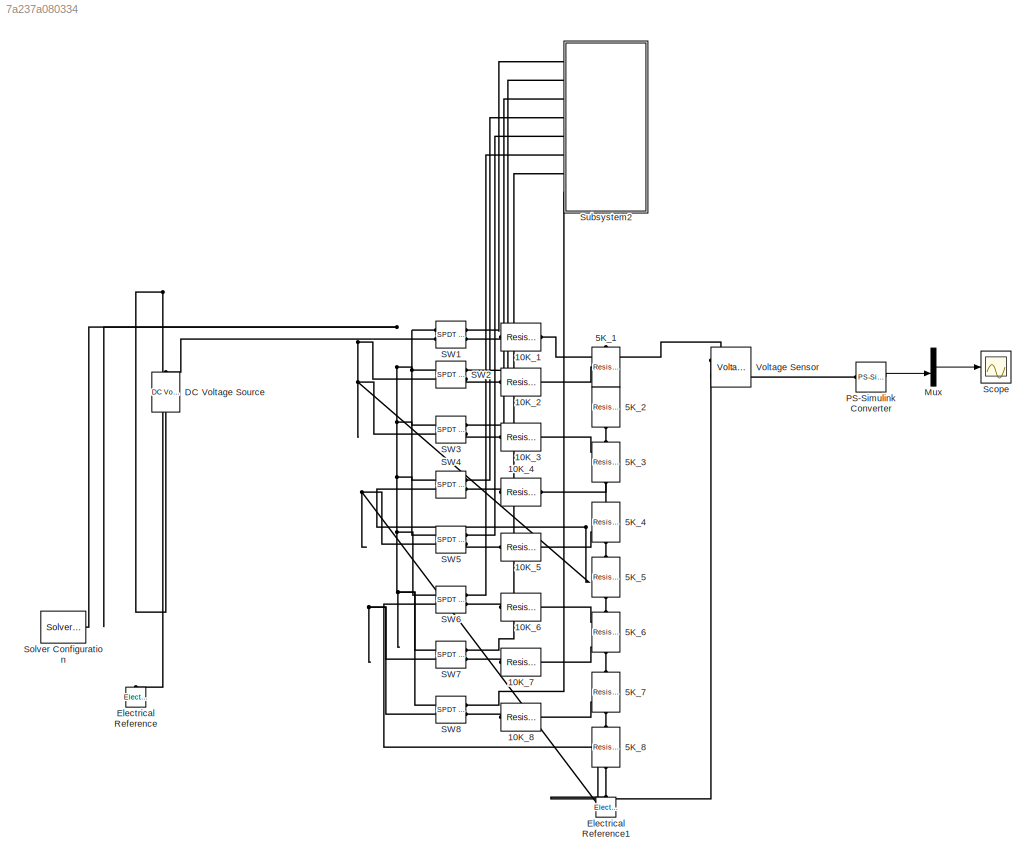
MODEL slx_7a237a080334
KIND model
CONFIG AbsTol = auto
CONFIG FixedStep = auto
CONFIG MaxStep = auto
CONFIG MinStep = auto
CONFIG RelTol = 1e-3
CONFIG SampleTimeConstraint = Unconstrained
CONFIG Solver = VariableStepAuto
CONFIG SolverMode = Auto
CONFIG SolverName = VariableStepAuto
CONFIG StartTime = 0.0
CONFIG StopTime = 512
BLOCK [Reference] 10K_1  REF=fl_lib/Electrical/Electrical Elements/Resistor
  Ports = [0, 0, 0, 0, 0, 1, 1]
  SourceBlock = fl_lib/Electrical/Electrical Elements/Resistor
  SourceType = Resistor
BLOCK [Reference] 10K_2  REF=fl_lib/Electrical/Electrical Elements/Resistor
  Ports = [0, 0, 0, 0, 0, 1, 1]
  SourceBlock = fl_lib/Electrical/Electrical Elements/Resistor
  SourceType = Resistor
BLOCK [Reference] 10K_3  REF=fl_lib/Electrical/Electrical Elements/Resistor
  Ports = [0, 0, 0, 0, 0, 1, 1]
  SourceBlock = fl_lib/Electrical/Electrical Elements/Resistor
  SourceType = Resistor
BLOCK [Reference] 10K_4  REF=fl_lib/Electrical/Electrical Elements/Resistor
  Ports = [0, 0, 0, 0, 0, 1, 1]
  SourceBlock = fl_lib/Electrical/Electrical Elements/Resistor
  SourceType = Resistor
BLOCK [Reference] 10K_5  REF=fl_lib/Electrical/Electrical Elements/Resistor
  Ports = [0, 0, 0, 0, 0, 1, 1]
  SourceBlock = fl_lib/Electrical/Electrical Elements/Resistor
  SourceType = Resistor
BLOCK [Reference] 10K_6  REF=fl_lib/Electrical/Electrical Elements/Resistor
  Ports = [0, 0, 0, 0, 0, 1, 1]
  SourceBlock = fl_lib/Electrical/Electrical Elements/Resistor
  SourceType = Resistor
BLOCK [Reference] 10K_7  REF=fl_lib/Electrical/Electrical Elements/Resistor
  Ports = [0, 0, 0, 0, 0, 1, 1]
  SourceBlock = fl_lib/Electrical/Electrical Elements/Resistor
  SourceType = Resistor
BLOCK [Reference] 10K_8  REF=fl_lib/Electrical/Electrical Elements/Resistor
  Ports = [0, 0, 0, 0, 0, 1, 1]
  SourceBlock = fl_lib/Electrical/Electrical Elements/Resistor
  SourceType = Resistor
BLOCK [Reference] 5K_1  REF=fl_lib/Electrical/Electrical Elements/Resistor
  Ports = [0, 0, 0, 0, 0, 1, 1]
  SourceBlock = fl_lib/Electrical/Electrical Elements/Resistor
  SourceType = Resistor
BLOCK [Reference] 5K_2  REF=fl_lib/Electrical/Electrical Elements/Resistor
  Ports = [0, 0, 0, 0, 0, 1, 1]
  SourceBlock = fl_lib/Electrical/Electrical Elements/Resistor
  SourceType = Resistor
BLOCK [Reference] 5K_3  REF=fl_lib/Electrical/Electrical Elements/Resistor
  Ports = [0, 0, 0, 0, 0, 1, 1]
  SourceBlock = fl_lib/Electrical/Electrical Elements/Resistor
  SourceType = Resistor
BLOCK [Reference] 5K_4  REF=fl_lib/Electrical/Electrical Elements/Resistor
  Ports = [0, 0, 0, 0, 0, 1, 1]
  SourceBlock = fl_lib/Electrical/Electrical Elements/Resistor
  SourceType = Resistor
BLOCK [Reference] 5K_5  REF=fl_lib/Electrical/Electrical Elements/Resistor
  Ports = [0, 0, 0, 0, 0, 1, 1]
  SourceBlock = fl_lib/Electrical/Electrical Elements/Resistor
  SourceType = Resistor
BLOCK [Reference] 5K_6  REF=fl_lib/Electrical/Electrical Elements/Resistor
  Ports = [0, 0, 0, 0, 0, 1, 1]
  SourceBlock = fl_lib/Electrical/Electrical Elements/Resistor
  SourceType = Resistor
BLOCK [Reference] 5K_7  REF=fl_lib/Electrical/Electrical Elements/Resistor
  Ports = [0, 0, 0, 0, 0, 1, 1]
  SourceBlock = fl_lib/Electrical/Electrical Elements/Resistor
  SourceType = Resistor
BLOCK [Reference] 5K_8  REF=fl_lib/Electrical/Electrical Elements/Resistor
  Ports = [0, 0, 0, 0, 0, 1, 1]
  SourceBlock = fl_lib/Electrical/Electrical Elements/Resistor
  SourceType = Resistor
BLOCK [Reference] DC Voltage Source  REF=fl_lib/Electrical/Electrical Sources/DC Voltage Source
  Ports = [0, 0, 0, 0, 0, 1, 1]
  SourceBlock = fl_lib/Electrical/Electrical Sources/DC Voltage Source
  SourceType = DC Voltage Source
BLOCK [Reference] Electrical Reference  REF=fl_lib/Electrical/Electrical Elements/Electrical Reference
  Ports = [0, 0, 0, 0, 0, 1]
  SourceBlock = fl_lib/Electrical/Electrical Elements/Electrical Reference
  SourceType = Electrical Reference
BLOCK [Reference] Electrical Reference1  REF=fl_lib/Electrical/Electrical Elements/Electrical Reference
  Ports = [0, 0, 0, 0, 0, 1]
  SourceBlock = fl_lib/Electrical/Electrical Elements/Electrical Reference
  SourceType = Electrical Reference
BLOCK [Mux] Mux
  DisplayOption = bar
  Inputs = 2
  Ports = [2, 1]
BLOCK [Reference] PS-Simulink Converter  REF=nesl_utility/PS-Simulink
Converter
  Ports = [0, 1, 0, 0, 0, 1]
  SourceBlock = nesl_utility/PS-Simulink\nConverter
  SourceType = PS-Simulink\nConverter
BLOCK [Reference] SW1  REF=elec_lib/Passive Devices/Switches/SPDT Switch
  Ports = [0, 0, 0, 0, 0, 2, 2]
  SourceBlock = elec_lib/Passive Devices/Switches/SPDT Switch
  SourceType = SPDT Switch
BLOCK [Reference] SW2  REF=elec_lib/Passive Devices/Switches/SPDT Switch
  Ports = [0, 0, 0, 0, 0, 2, 2]
  SourceBlock = elec_lib/Passive Devices/Switches/SPDT Switch
  SourceType = SPDT Switch
BLOCK [Reference] SW3  REF=elec_lib/Passive Devices/Switches/SPDT Switch
  Ports = [0, 0, 0, 0, 0, 2, 2]
  SourceBlock = elec_lib/Passive Devices/Switches/SPDT Switch
  SourceType = SPDT Switch
BLOCK [Reference] SW4  REF=elec_lib/Passive Devices/Switches/SPDT Switch
  Ports = [0, 0, 0, 0, 0, 2, 2]
  SourceBlock = elec_lib/Passive Devices/Switches/SPDT Switch
  SourceType = SPDT Switch
BLOCK [Reference] SW5  REF=elec_lib/Passive Devices/Switches/SPDT Switch
  Ports = [0, 0, 0, 0, 0, 2, 2]
  SourceBlock = elec_lib/Passive Devices/Switches/SPDT Switch
  SourceType = SPDT Switch
BLOCK [Reference] SW6  REF=elec_lib/Passive Devices/Switches/SPDT Switch
  Ports = [0, 0, 0, 0, 0, 2, 2]
  SourceBlock = elec_lib/Passive Devices/Switches/SPDT Switch
  SourceType = SPDT Switch
BLOCK [Reference] SW7  REF=elec_lib/Passive Devices/Switches/SPDT Switch
  Ports = [0, 0, 0, 0, 0, 2, 2]
  SourceBlock = elec_lib/Passive Devices/Switches/SPDT Switch
  SourceType = SPDT Switch
BLOCK [Reference] SW8  REF=elec_lib/Passive Devices/Switches/SPDT Switch
  Ports = [0, 0, 0, 0, 0, 2, 2]
  SourceBlock = elec_lib/Passive Devices/Switches/SPDT Switch
  SourceType = SPDT Switch
BLOCK [Scope] Scope
  Ports = [1]
  ScopeSpecificationString = Simulink.scopes.TimeScopeBlockCfg('CurrentConfiguration', extmgr.ConfigurationSet(extmgr.Configuration('Core','General UI',true),extmgr.Configuration('Core','Source UI',true),extmgr.Configuration('Sources','WiredSimulink',true),extmgr.Configuration('Visuals','Time Domain',true,'SerializedDisplays',{struct('MinYLimReal','-0.62134','MaxYLimReal','5.59204','YLabelReal','','MinYLimMag','0.00000','MaxY...<+1452ch>
BLOCK [Reference] Solver Configuration  REF=nesl_utility/Solver
Configuration
  Ports = [0, 0, 0, 0, 0, 0, 1]
  SourceBlock = nesl_utility/Solver\nConfiguration
  SourceType = Solver\nConfiguration
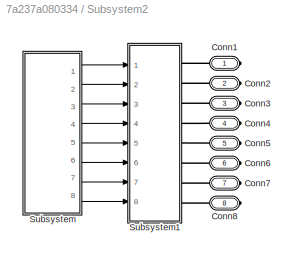
BLOCK [SubSystem] Subsystem2
  Ports = [0, 0, 0, 0, 0, 0, 8]
  RequestExecContextInheritance = off
  Variant = off
BLOCK [PMIOPort] Subsystem2/Conn1
  Port = 1
  Side = Right
BLOCK [PMIOPort] Subsystem2/Conn2
  Port = 2
  Side = Right
BLOCK [PMIOPort] Subsystem2/Conn3
  Port = 3
  Side = Right
BLOCK [PMIOPort] Subsystem2/Conn4
  Port = 4
  Side = Right
BLOCK [PMIOPort] Subsystem2/Conn5
  Port = 5
  Side = Right
BLOCK [PMIOPort] Subsystem2/Conn6
  Port = 6
  Side = Right
BLOCK [PMIOPort] Subsystem2/Conn7
  Port = 7
  Side = Right
BLOCK [PMIOPort] Subsystem2/Conn8
  Port = 8
  Side = Right
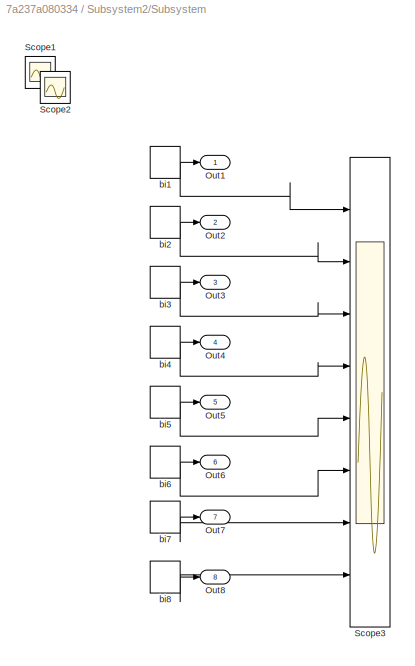
BLOCK [SubSystem] Subsystem2/Subsystem
  Ports = [0, 8]
  RequestExecContextInheritance = off
  Variant = off
BLOCK [Outport] Subsystem2/Subsystem/Out1
  IconDisplay = Port number
BLOCK [Outport] Subsystem2/Subsystem/Out2
  IconDisplay = Port number
  Port = 2
BLOCK [Outport] Subsystem2/Subsystem/Out3
  IconDisplay = Port number
  Port = 3
BLOCK [Outport] Subsystem2/Subsystem/Out4
  IconDisplay = Port number
  Port = 4
BLOCK [Outport] Subsystem2/Subsystem/Out5
  IconDisplay = Port number
  Port = 5
BLOCK [Outport] Subsystem2/Subsystem/Out6
  IconDisplay = Port number
  Port = 6
BLOCK [Outport] Subsystem2/Subsystem/Out7
  IconDisplay = Port number
  Port = 7
BLOCK [Outport] Subsystem2/Subsystem/Out8
  IconDisplay = Port number
  Port = 8
BLOCK [Scope] Subsystem2/Subsystem/Scope1
  Ports = [1]
  ScopeSpecificationString = Simulink.scopes.TimeScopeBlockCfg('CurrentConfiguration', extmgr.ConfigurationSet(extmgr.Configuration('Core','General UI',true),extmgr.Configuration('Core','Source UI',true),extmgr.Configuration('Sources','WiredSimulink',true,'DataLoggingVariableName','ScopeData2'),extmgr.Configuration('Visuals','Time Domain',true,'SerializedDisplays',{struct('MinYLimReal','-0.05089','MaxYLimReal','1.01546','YLab...<+1541ch>
BLOCK [Scope] Subsystem2/Subsystem/Scope2
  Ports = [1]
  ScopeSpecificationString = Simulink.scopes.TimeScopeBlockCfg('CurrentConfiguration', extmgr.ConfigurationSet(extmgr.Configuration('Core','General UI',true),extmgr.Configuration('Core','Source UI',true),extmgr.Configuration('Sources','WiredSimulink',true,'DataLoggingVariableName','ScopeData3'),extmgr.Configuration('Visuals','Time Domain',true,'SerializedDisplays',{struct('MinYLimReal','-0.05089','MaxYLimReal','1.01546','YLab...<+1541ch>
BLOCK [Scope] Subsystem2/Subsystem/Scope3
  NumInputPorts = 8
  Ports = [8]
  ScopeSpecificationString = Simulink.scopes.TimeScopeBlockCfg('CurrentConfiguration', extmgr.ConfigurationSet(extmgr.Configuration('Core','General UI',true),extmgr.Configuration('Core','Source UI',true),extmgr.Configuration('Sources','WiredSimulink',true,'DataLoggingVariableName','ScopeData1'),extmgr.Configuration('Visuals','Time Domain',true,'SerializedDisplays',{struct('MinYLimReal','-0.125','MaxYLimReal','1.125','YLabelRe...<+6253ch>
BLOCK [DiscretePulseGenerator] Subsystem2/Subsystem/bi1
  Period = 256
  Ports = [0, 1]
  PulseType = Time based
  PulseWidth = 50
BLOCK [DiscretePulseGenerator] Subsystem2/Subsystem/bi2
  Period = 128
  Ports = [0, 1]
  PulseType = Time based
  PulseWidth = 50
BLOCK [DiscretePulseGenerator] Subsystem2/Subsystem/bi3
  Period = 64
  Ports = [0, 1]
  PulseType = Time based
  PulseWidth = 50
BLOCK [DiscretePulseGenerator] Subsystem2/Subsystem/bi4
  Period = 32
  Ports = [0, 1]
  PulseType = Time based
  PulseWidth = 50
BLOCK [DiscretePulseGenerator] Subsystem2/Subsystem/bi5
  Period = 16
  Ports = [0, 1]
  PulseType = Time based
  PulseWidth = 50
BLOCK [DiscretePulseGenerator] Subsystem2/Subsystem/bi6
  Period = 8
  Ports = [0, 1]
  PulseType = Time based
  PulseWidth = 50
BLOCK [DiscretePulseGenerator] Subsystem2/Subsystem/bi7
  Period = 4
  Ports = [0, 1]
  PulseType = Time based
  PulseWidth = 50
BLOCK [DiscretePulseGenerator] Subsystem2/Subsystem/bi8
  Ports = [0, 1]
  PulseType = Time based
  PulseWidth = 50
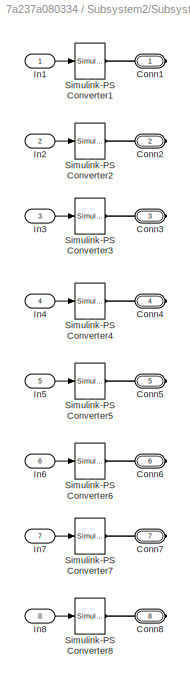
BLOCK [SubSystem] Subsystem2/Subsystem1
  Ports = [8, 0, 0, 0, 0, 0, 8]
  RequestExecContextInheritance = off
  Variant = off
BLOCK [PMIOPort] Subsystem2/Subsystem1/Conn1
  Port = 1
  Side = Right
BLOCK [PMIOPort] Subsystem2/Subsystem1/Conn2
  Port = 2
  Side = Right
BLOCK [PMIOPort] Subsystem2/Subsystem1/Conn3
  Port = 3
  Side = Right
BLOCK [PMIOPort] Subsystem2/Subsystem1/Conn4
  Port = 4
  Side = Right
BLOCK [PMIOPort] Subsystem2/Subsystem1/Conn5
  Port = 5
  Side = Right
BLOCK [PMIOPort] Subsystem2/Subsystem1/Conn6
  Port = 6
  Side = Right
BLOCK [PMIOPort] Subsystem2/Subsystem1/Conn7
  Port = 7
  Side = Right
BLOCK [PMIOPort] Subsystem2/Subsystem1/Conn8
  Port = 8
  Side = Right
BLOCK [Inport] Subsystem2/Subsystem1/In1
  IconDisplay = Port number
BLOCK [Inport] Subsystem2/Subsystem1/In2
  IconDisplay = Port number
  Port = 2
BLOCK [Inport] Subsystem2/Subsystem1/In3
  IconDisplay = Port number
  Port = 3
BLOCK [Inport] Subsystem2/Subsystem1/In4
  IconDisplay = Port number
  Port = 4
BLOCK [Inport] Subsystem2/Subsystem1/In5
  IconDisplay = Port number
  Port = 5
BLOCK [Inport] Subsystem2/Subsystem1/In6
  IconDisplay = Port number
  Port = 6
BLOCK [Inport] Subsystem2/Subsystem1/In7
  IconDisplay = Port number
  Port = 7
BLOCK [Inport] Subsystem2/Subsystem1/In8
  IconDisplay = Port number
  Port = 8
BLOCK [Reference] Subsystem2/Subsystem1/Simulink-PS Converter1  REF=nesl_utility/Simulink-PS
Converter
  Ports = [1, 0, 0, 0, 0, 0, 1]
  SourceBlock = nesl_utility/Simulink-PS\nConverter
  SourceType = Simulink-PS\nConverter
BLOCK [Reference] Subsystem2/Subsystem1/Simulink-PS Converter2  REF=nesl_utility/Simulink-PS
Converter
  Ports = [1, 0, 0, 0, 0, 0, 1]
  SourceBlock = nesl_utility/Simulink-PS\nConverter
  SourceType = Simulink-PS\nConverter
BLOCK [Reference] Subsystem2/Subsystem1/Simulink-PS Converter3  REF=nesl_utility/Simulink-PS
Converter
  Ports = [1, 0, 0, 0, 0, 0, 1]
  SourceBlock = nesl_utility/Simulink-PS\nConverter
  SourceType = Simulink-PS\nConverter
BLOCK [Reference] Subsystem2/Subsystem1/Simulink-PS Converter4  REF=nesl_utility/Simulink-PS
Converter
  Ports = [1, 0, 0, 0, 0, 0, 1]
  SourceBlock = nesl_utility/Simulink-PS\nConverter
  SourceType = Simulink-PS\nConverter
BLOCK [Reference] Subsystem2/Subsystem1/Simulink-PS Converter5  REF=nesl_utility/Simulink-PS
Converter
  Ports = [1, 0, 0, 0, 0, 0, 1]
  SourceBlock = nesl_utility/Simulink-PS\nConverter
  SourceType = Simulink-PS\nConverter
BLOCK [Reference] Subsystem2/Subsystem1/Simulink-PS Converter6  REF=nesl_utility/Simulink-PS
Converter
  Ports = [1, 0, 0, 0, 0, 0, 1]
  SourceBlock = nesl_utility/Simulink-PS\nConverter
  SourceType = Simulink-PS\nConverter
BLOCK [Reference] Subsystem2/Subsystem1/Simulink-PS Converter7  REF=nesl_utility/Simulink-PS
Converter
  Ports = [1, 0, 0, 0, 0, 0, 1]
  SourceBlock = nesl_utility/Simulink-PS\nConverter
  SourceType = Simulink-PS\nConverter
BLOCK [Reference] Subsystem2/Subsystem1/Simulink-PS Converter8  REF=nesl_utility/Simulink-PS
Converter
  Ports = [1, 0, 0, 0, 0, 0, 1]
  SourceBlock = nesl_utility/Simulink-PS\nConverter
  SourceType = Simulink-PS\nConverter
BLOCK [Reference] Voltage Sensor  REF=fl_lib/Electrical/Electrical Sensors/Voltage Sensor
  Ports = [0, 0, 0, 0, 0, 1, 2]
  SourceBlock = fl_lib/Electrical/Electrical Sensors/Voltage Sensor
  SourceType = Voltage Sensor
LINE Mux:1 -> Scope:1
LINE PS-Simulink Converter:1 -> Mux:2
NET Subsystem2/Subsystem/bi1:1 -> Subsystem2/Subsystem/Out1:1, Subsystem2/Subsystem/Scope3:1
NET Subsystem2/Subsystem/bi2:1 -> Subsystem2/Subsystem/Out2:1, Subsystem2/Subsystem/Scope3:2
NET Subsystem2/Subsystem/bi3:1 -> Subsystem2/Subsystem/Out3:1, Subsystem2/Subsystem/Scope3:3
NET Subsystem2/Subsystem/bi4:1 -> Subsystem2/Subsystem/Out4:1, Subsystem2/Subsystem/Scope3:4
NET Subsystem2/Subsystem/bi5:1 -> Subsystem2/Subsystem/Out5:1, Subsystem2/Subsystem/Scope3:5
NET Subsystem2/Subsystem/bi6:1 -> Subsystem2/Subsystem/Out6:1, Subsystem2/Subsystem/Scope3:6
NET Subsystem2/Subsystem/bi7:1 -> Subsystem2/Subsystem/Out7:1, Subsystem2/Subsystem/Scope3:7
NET Subsystem2/Subsystem/bi8:1 -> Subsystem2/Subsystem/Out8:1, Subsystem2/Subsystem/Scope3:8
LINE Subsystem2/Subsystem1/In1:1 -> Subsystem2/Subsystem1/Simulink-PS Converter1:1
LINE Subsystem2/Subsystem1/In2:1 -> Subsystem2/Subsystem1/Simulink-PS Converter2:1
LINE Subsystem2/Subsystem1/In3:1 -> Subsystem2/Subsystem1/Simulink-PS Converter3:1
LINE Subsystem2/Subsystem1/In4:1 -> Subsystem2/Subsystem1/Simulink-PS Converter4:1
LINE Subsystem2/Subsystem1/In5:1 -> Subsystem2/Subsystem1/Simulink-PS Converter5:1
LINE Subsystem2/Subsystem1/In6:1 -> Subsystem2/Subsystem1/Simulink-PS Converter6:1
LINE Subsystem2/Subsystem1/In7:1 -> Subsystem2/Subsystem1/Simulink-PS Converter7:1
LINE Subsystem2/Subsystem1/In8:1 -> Subsystem2/Subsystem1/Simulink-PS Converter8:1
LINE Subsystem2/Subsystem:1 -> Subsystem2/Subsystem1:1
LINE Subsystem2/Subsystem:2 -> Subsystem2/Subsystem1:2
LINE Subsystem2/Subsystem:3 -> Subsystem2/Subsystem1:3
LINE Subsystem2/Subsystem:4 -> Subsystem2/Subsystem1:4
LINE Subsystem2/Subsystem:5 -> Subsystem2/Subsystem1:5
LINE Subsystem2/Subsystem:6 -> Subsystem2/Subsystem1:6
LINE Subsystem2/Subsystem:7 -> Subsystem2/Subsystem1:7
LINE Subsystem2/Subsystem:8 -> Subsystem2/Subsystem1:8
PLINE 10K_1:LConn1 -- SW1:LConn2
PNET net1: 10K_1:RConn1 -- 5K_1:LConn1 -- Voltage Sensor:LConn1
PLINE 10K_2:LConn1 -- SW2:LConn2
PNET net2: 10K_2:RConn1 -- 5K_1:RConn1 -- 5K_2:LConn1
PLINE 10K_3:LConn1 -- SW3:LConn2
PNET net3: 10K_3:RConn1 -- 5K_2:RConn1 -- 5K_3:LConn1
PLINE 10K_4:LConn1 -- SW4:LConn2
PNET net4: 10K_4:RConn1 -- 5K_3:RConn1 -- 5K_4:LConn1
PLINE 10K_5:LConn1 -- SW5:LConn2
PNET net5: 10K_5:RConn1 -- 5K_4:RConn1 -- 5K_5:LConn1
PLINE 10K_6:LConn1 -- SW6:LConn2
PNET net6: 10K_6:RConn1 -- 5K_5:RConn1 -- 5K_6:LConn1
PLINE 10K_7:LConn1 -- SW7:LConn2
PNET net7: 10K_7:RConn1 -- 5K_6:RConn1 -- 5K_7:LConn1
PLINE 10K_8:LConn1 -- SW8:LConn2
PNET net8: 10K_8:RConn1 -- 5K_7:RConn1 -- 5K_8:LConn1
PNET net9: 5K_8:RConn1 -- Electrical Reference1:LConn1 -- Voltage Sensor:RConn2
PNET net10: DC Voltage Source:LConn1 -- SW1:RConn2 -- SW2:RConn2 -- SW3:RConn2 -- SW4:RConn2 -- SW5:RConn2 -- SW6:RConn2 -- SW7:RConn2 -- SW8:RConn2
PNET net11: DC Voltage Source:RConn1 -- Electrical Reference:LConn1 -- SW1:RConn1 -- SW2:RConn1 -- SW3:RConn1 -- SW4:RConn1 -- SW5:RConn1 -- SW6:RConn1 -- SW7:RConn1 -- SW8:RConn1 -- Solver Configuration:RConn1
PLINE PS-Simulink Converter:LConn1 -- Voltage Sensor:RConn1
PLINE SW1:LConn1 -- Subsystem2:RConn1
PLINE SW2:LConn1 -- Subsystem2:RConn2
PLINE SW3:LConn1 -- Subsystem2:RConn3
PLINE SW4:LConn1 -- Subsystem2:RConn4
PLINE SW5:LConn1 -- Subsystem2:RConn5
PLINE SW6:LConn1 -- Subsystem2:RConn6
PLINE SW7:LConn1 -- Subsystem2:RConn7
PLINE SW8:LConn1 -- Subsystem2:RConn8
PLINE Subsystem2/Conn1:RConn1 -- Subsystem2/Subsystem1:RConn1
PLINE Subsystem2/Conn2:RConn1 -- Subsystem2/Subsystem1:RConn2
PLINE Subsystem2/Conn3:RConn1 -- Subsystem2/Subsystem1:RConn3
PLINE Subsystem2/Conn4:RConn1 -- Subsystem2/Subsystem1:RConn4
PLINE Subsystem2/Conn5:RConn1 -- Subsystem2/Subsystem1:RConn5
PLINE Subsystem2/Conn6:RConn1 -- Subsystem2/Subsystem1:RConn6
PLINE Subsystem2/Conn7:RConn1 -- Subsystem2/Subsystem1:RConn7
PLINE Subsystem2/Conn8:RConn1 -- Subsystem2/Subsystem1:RConn8
PLINE Subsystem2/Subsystem1/Conn1:RConn1 -- Subsystem2/Subsystem1/Simulink-PS Converter1:RConn1
PLINE Subsystem2/Subsystem1/Conn2:RConn1 -- Subsystem2/Subsystem1/Simulink-PS Converter2:RConn1
PLINE Subsystem2/Subsystem1/Conn3:RConn1 -- Subsystem2/Subsystem1/Simulink-PS Converter3:RConn1
PLINE Subsystem2/Subsystem1/Conn4:RConn1 -- Subsystem2/Subsystem1/Simulink-PS Converter4:RConn1
PLINE Subsystem2/Subsystem1/Conn5:RConn1 -- Subsystem2/Subsystem1/Simulink-PS Converter5:RConn1
PLINE Subsystem2/Subsystem1/Conn6:RConn1 -- Subsystem2/Subsystem1/Simulink-PS Converter6:RConn1
PLINE Subsystem2/Subsystem1/Conn7:RConn1 -- Subsystem2/Subsystem1/Simulink-PS Converter7:RConn1
PLINE Subsystem2/Subsystem1/Conn8:RConn1 -- Subsystem2/Subsystem1/Simulink-PS Converter8:RConn1
note: NET lines group one-source signal fan-out (src -> all destinations, sorted); 1:1 wires keep LINE; PNET lines group multi-terminal physical nets as a canonical sorted terminal list (undirected conserving connections); 2-terminal nets keep the pairwise PLINE form
